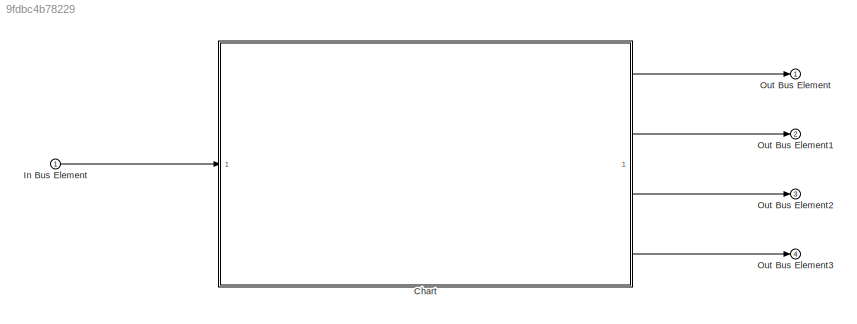
MODEL slx_9fdbc4b78229
KIND model
CONFIG AbsTol = auto
CONFIG EnableMultiTasking = off
CONFIG FixedStep = 0.1
CONFIG MaxStep = auto
CONFIG MinStep = auto
CONFIG RelTol = 1e-3
CONFIG SampleTimeConstraint = Unconstrained
CONFIG SolverName = FixedStepAuto
CONFIG StartTime = 0.0
CONFIG StopTime = 10.0
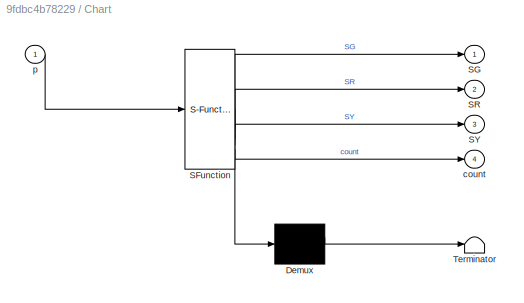
BLOCK [SubSystem] Chart
  ErrorFcn = Stateflow.Translate.translate
  PermitHierarchicalResolution = ExplicitOnly
  SFBlockType = Chart
  TreatAsAtomicUnit = on
BLOCK [Demux] Chart/ Demux 
  Outputs = 1
BLOCK [S-Function] Chart/ SFunction 
  EnableBusSupport = on
  FunctionName = sf_sfun
  PortCounts = [1 5]
  SFcnIsStateOwnerBlock = off
  SFunctionDeploymentMode = off
  Tag = Stateflow S-Function 3
BLOCK [Terminator] Chart/ Terminator 
BLOCK [Outport] Chart/SG
BLOCK [Outport] Chart/SR
  Port = 2
BLOCK [Outport] Chart/SY
  Port = 3
BLOCK [Outport] Chart/count
  Port = 4
BLOCK [Inport] Chart/p
BLOCK [Inport] In Bus Element
BLOCK [Outport] Out Bus Element
BLOCK [Outport] Out Bus Element1
  Port = 2
BLOCK [Outport] Out Bus Element2
  Port = 3
BLOCK [Outport] Out Bus Element3
  Port = 4
LINE Chart:1 -> Out Bus Element:1
LINE Chart:2 -> Out Bus Element1:1
LINE Chart:3 -> Out Bus Element2:1
LINE Chart:4 -> Out Bus Element3:1
LINE In Bus Element:1 -> Chart:1
CHART Chart states=4 transitions=10
  STATE_LABEL 'Green'
  STATE_LABEL 'Red'
  STATE_LABEL 'Yellow'
  STATE_LABEL 'Pending'
CHART  states=0 transitions=0
